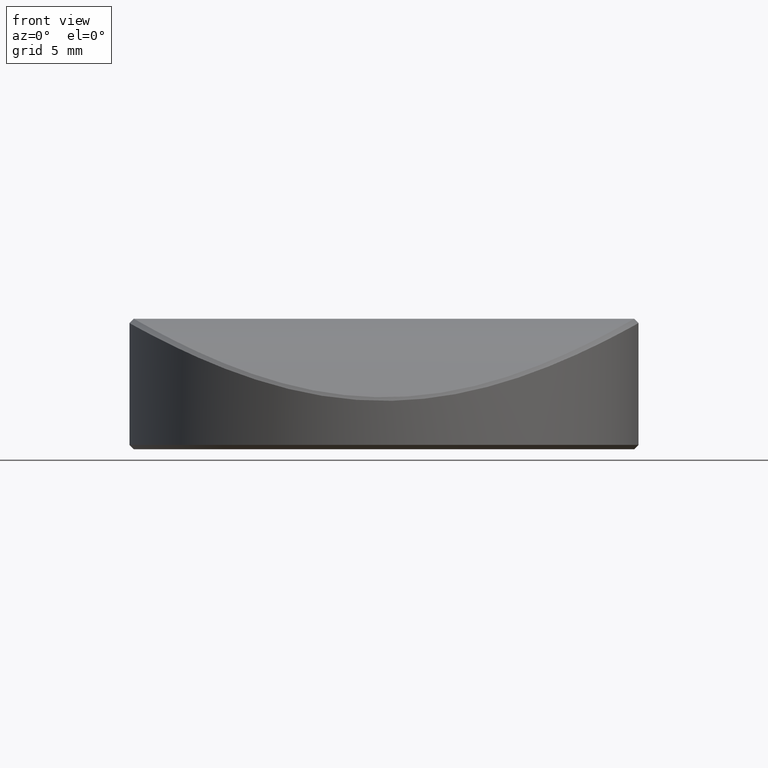
[diagram: clean part render]
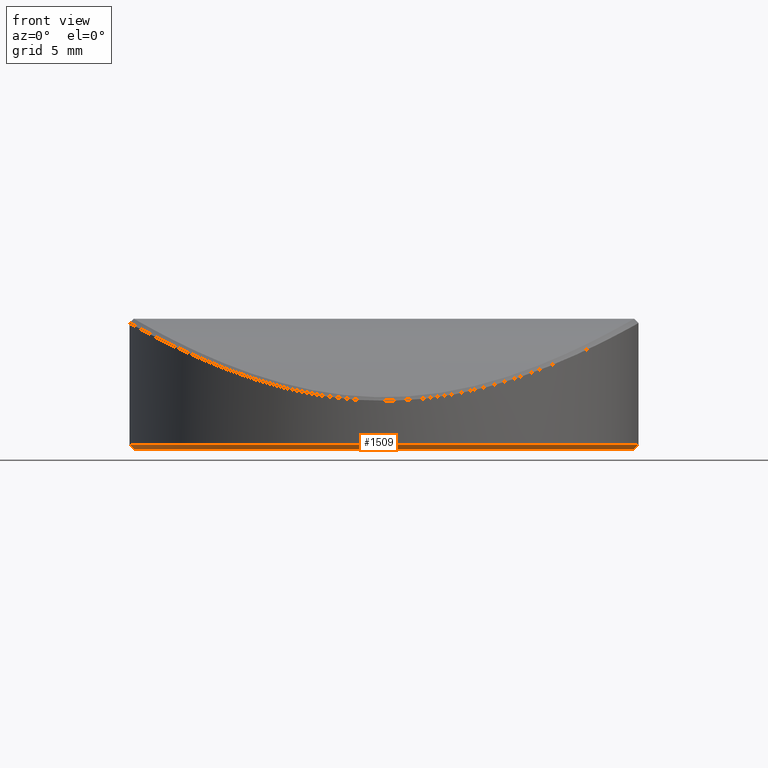
[diagram: same view with one face highlighted and labeled with its STEP entity id]
A machine part, front view. The second image highlights one B-rep face of the part: STEP entity #1509.
In plain terms, the highlighted conical surface has half-angle 45 deg.
Its self-contained STEP definition (entity closure, byte-faithful):
#85 = EDGE_CURVE ( 'NONE', #2753, #1406, #1826, .T. ) ;
#169 = CARTESIAN_POINT ( 'NONE',  ( 11.49999999999999645, 0.000000000000000000, 0.000000000000000000 ) ) ;
#215 = DIRECTION ( 'NONE',  ( 1.000000000000000000, 0.000000000000000000, 0.000000000000000000 ) ) ;
#231 = LINE ( 'NONE', #1115, #2246 ) ;
#277 = FACE_OUTER_BOUND ( 'NONE', #960, .T. ) ;
#393 = DIRECTION ( 'NONE',  ( -0.000000000000000000, -0.000000000000000000, -1.000000000000000000 ) ) ;
#629 = CARTESIAN_POINT ( 'NONE',  ( 0.000000000000000000, 0.000000000000000000, 0.000000000000000000 ) ) ;
#651 = CARTESIAN_POINT ( 'NONE',  ( 0.000000000000000000, 0.000000000000000000, 0.2000000000000040079 ) ) ;
#704 = DIRECTION ( 'NONE',  ( -0.7071067811865443531, 8.659560562354895880E-17, 0.7071067811865506814 ) ) ;
#717 = CONICAL_SURFACE ( 'NONE', #2208, 11.69999999999999929, 0.7853981633974439491 ) ;
#825 = CARTESIAN_POINT ( 'NONE',  ( -11.69999999999999929, 0.000000000000000000, 0.2000000000000040079 ) ) ;
#869 = AXIS2_PLACEMENT_3D ( 'NONE', #629, #393, #1945 ) ;
#888 = CARTESIAN_POINT ( 'NONE',  ( 11.69999999999999929, 1.432836755002403087E-15, 0.2000000000000040079 ) ) ;
#952 = CARTESIAN_POINT ( 'NONE',  ( 0.000000000000000000, 0.000000000000000000, 0.2000000000000040079 ) ) ;
#953 = EDGE_CURVE ( 'NONE', #2753, #1391, #231, .T. ) ;
#960 = EDGE_LOOP ( 'NONE', ( #2120, #2516, #1871, #2090 ) ) ;
#1082 = EDGE_CURVE ( 'NONE', #1406, #2738, #2010, .T. ) ;
#1115 = CARTESIAN_POINT ( 'NONE',  ( 11.69999999999999929, 0.000000000000000000, 0.2000000000000040079 ) ) ;
#1116 = EDGE_CURVE ( 'NONE', #2738, #1391, #1136, .T. ) ;
#1136 = CIRCLE ( 'NONE', #2299, 11.69999999999999929 ) ;
#1391 = VERTEX_POINT ( 'NONE', #888 ) ;
#1406 = VERTEX_POINT ( 'NONE', #2266 ) ;
#1509 = ADVANCED_FACE ( 'NONE', ( #277 ), #717, .T. ) ;
#1584 = CARTESIAN_POINT ( 'NONE',  ( -11.69999999999999929, 1.432836755002403087E-15, 0.2000000000000040079 ) ) ;
#1826 = CIRCLE ( 'NONE', #869, 11.49999999999999645 ) ;
#1848 = DIRECTION ( 'NONE',  ( 1.000000000000000000, 0.000000000000000000, 0.000000000000000000 ) ) ;
#1871 = ORIENTED_EDGE ( 'NONE', *, *, #953, .T. ) ;
#1945 = DIRECTION ( 'NONE',  ( 1.000000000000000000, 0.000000000000000000, 0.000000000000000000 ) ) ;
#2010 = LINE ( 'NONE', #1584, #2063 ) ;
#2063 = VECTOR ( 'NONE', #704, 1000.000000000000114 ) ;
#2090 = ORIENTED_EDGE ( 'NONE', *, *, #1116, .F. ) ;
#2120 = ORIENTED_EDGE ( 'NONE', *, *, #1082, .F. ) ;
#2208 = AXIS2_PLACEMENT_3D ( 'NONE', #651, #2438, #215 ) ;
#2246 = VECTOR ( 'NONE', #2453, 1000.000000000000114 ) ;
#2266 = CARTESIAN_POINT ( 'NONE',  ( -11.49999999999999645, 1.420590287010929336E-15, 0.000000000000000000 ) ) ;
#2299 = AXIS2_PLACEMENT_3D ( 'NONE', #952, #2492, #1848 ) ;
#2438 = DIRECTION ( 'NONE',  ( -0.000000000000000000, -0.000000000000000000, 1.000000000000000000 ) ) ;
#2453 = DIRECTION ( 'NONE',  ( 0.7071067811865443531, 0.000000000000000000, 0.7071067811865506814 ) ) ;
#2492 = DIRECTION ( 'NONE',  ( -0.000000000000000000, -0.000000000000000000, 1.000000000000000000 ) ) ;
#2516 = ORIENTED_EDGE ( 'NONE', *, *, #85, .F. ) ;
#2738 = VERTEX_POINT ( 'NONE', #825 ) ;
#2753 = VERTEX_POINT ( 'NONE', #169 ) ;